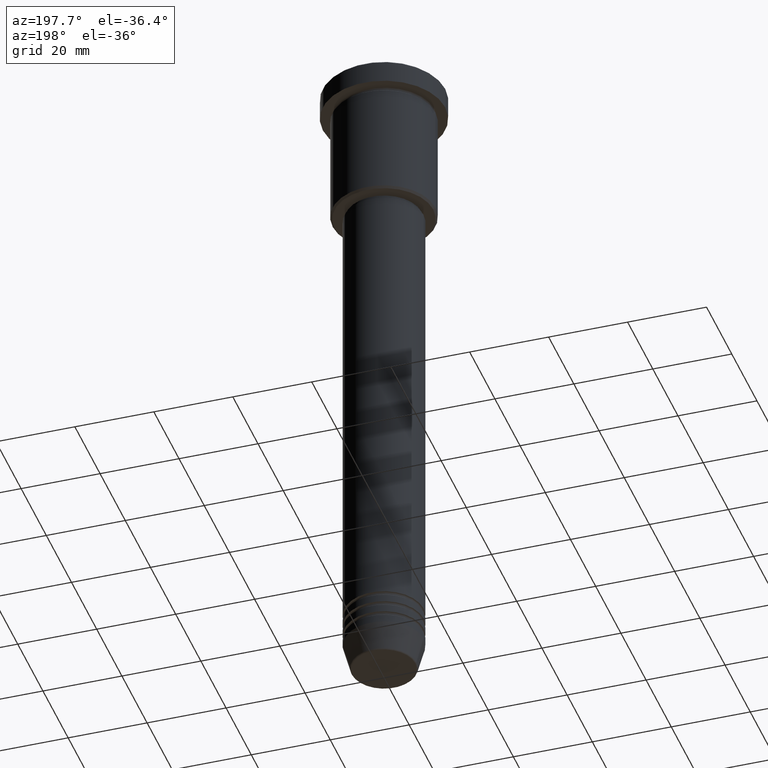
[diagram: clean part render]
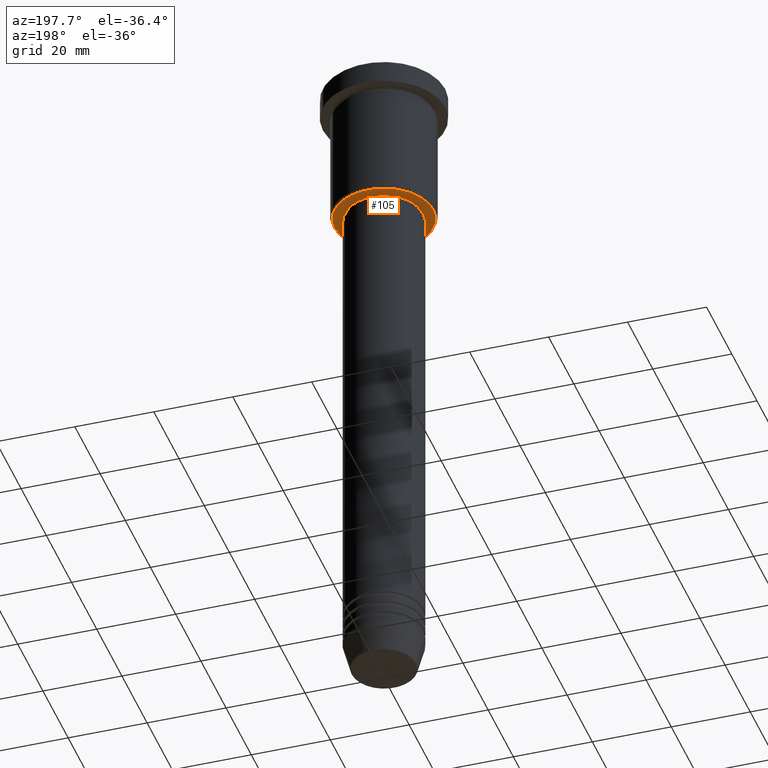
[diagram: same view with one face highlighted and labeled with its STEP entity id]
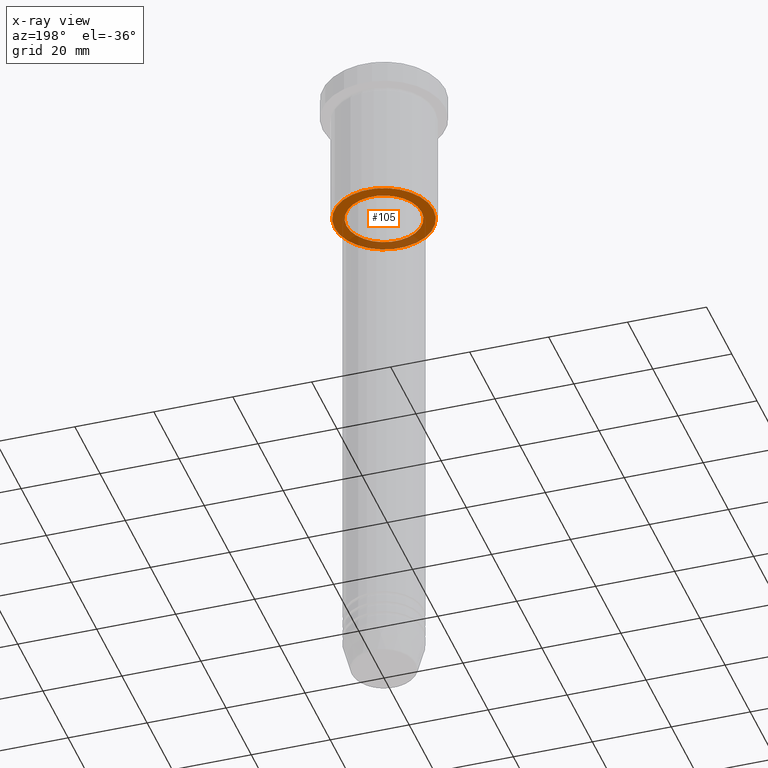
[diagram: x-ray of the same camera — body ghosted, the highlighted face saturated]
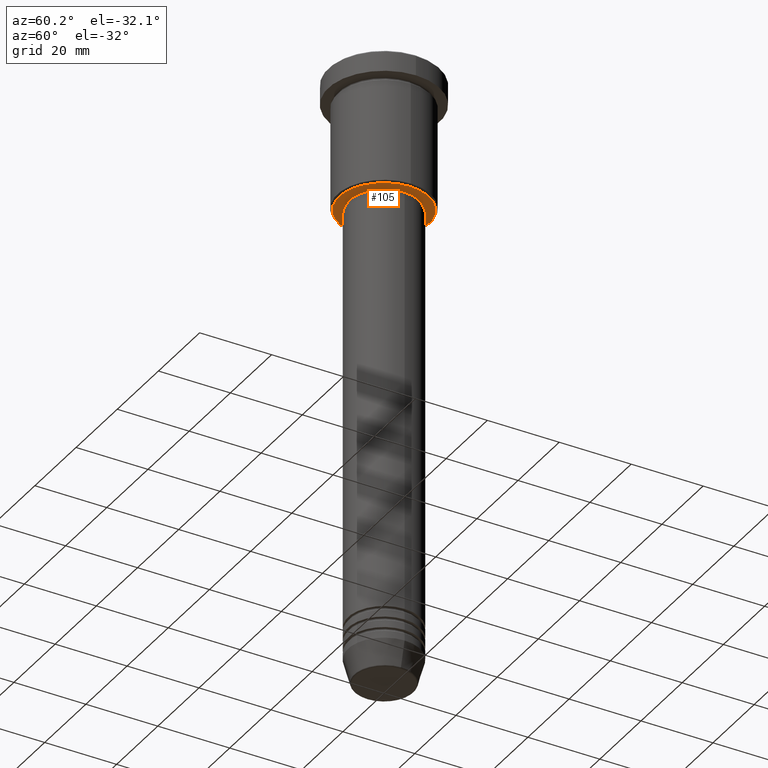
[diagram: same view with one face highlighted and labeled with its STEP entity id]
A machine part, auxiliary view. The second image highlights one B-rep face of the part: STEP entity #105.
The next image is the same camera in x-ray: the body ghosted, the highlighted face saturated — about 25% of this face is hidden behind the body in this view.
A second angle (auxiliary view) of the same face is appended — the face is thin or edge-on in the first view.
In plain terms, the highlighted planar face has unit normal (0, 0, -1).
Its self-contained STEP definition (entity closure, byte-faithful):
#34 = EDGE_LOOP ( 'NONE', ( #687, #958 ) ) ;
#48 = CIRCLE ( 'NONE', #617, 9.500000000000000000 ) ;
#97 = DIRECTION ( 'NONE',  ( 0.000000000000000000, 0.000000000000000000, -1.000000000000000000 ) ) ;
#105 = ADVANCED_FACE ( 'NONE', ( #367, #928 ), #767, .T. ) ;
#125 = CIRCLE ( 'NONE', #427, 12.49999999999996980 ) ;
#129 = DIRECTION ( 'NONE',  ( -1.000000000000000000, 0.000000000000000000, -0.000000000000000000 ) ) ;
#140 = EDGE_CURVE ( 'NONE', #852, #201, #48, .T. ) ;
#168 = AXIS2_PLACEMENT_3D ( 'NONE', #547, #828, #451 ) ;
#190 = DIRECTION ( 'NONE',  ( -1.000000000000000000, 0.000000000000000000, 0.000000000000000000 ) ) ;
#201 = VERTEX_POINT ( 'NONE', #218 ) ;
#218 = CARTESIAN_POINT ( 'NONE',  ( 9.500000000000000000, 0.000000000000000000, -35.99999999999999289 ) ) ;
#250 = EDGE_CURVE ( 'NONE', #952, #471, #483, .T. ) ;
#301 = DIRECTION ( 'NONE',  ( 0.000000000000000000, 0.000000000000000000, -1.000000000000000000 ) ) ;
#367 = FACE_OUTER_BOUND ( 'NONE', #34, .T. ) ;
#369 = CARTESIAN_POINT ( 'NONE',  ( -9.500000000000000000, 1.163414459189985485E-15, -35.99999999999999289 ) ) ;
#403 = EDGE_LOOP ( 'NONE', ( #753, #1057 ) ) ;
#425 = CIRCLE ( 'NONE', #656, 9.500000000000000000 ) ;
#427 = AXIS2_PLACEMENT_3D ( 'NONE', #646, #97, #190 ) ;
#451 = DIRECTION ( 'NONE',  ( -1.000000000000000000, 0.000000000000000000, 0.000000000000000000 ) ) ;
#471 = VERTEX_POINT ( 'NONE', #545 ) ;
#483 = CIRCLE ( 'NONE', #168, 12.49999999999996980 ) ;
#506 = DIRECTION ( 'NONE',  ( -0.000000000000000000, -0.000000000000000000, 1.000000000000000000 ) ) ;
#545 = CARTESIAN_POINT ( 'NONE',  ( -12.49999999999996980, 1.561424668912873336E-15, -35.99999999999999289 ) ) ;
#547 = CARTESIAN_POINT ( 'NONE',  ( 0.000000000000000000, 0.000000000000000000, -35.99999999999999289 ) ) ;
#573 = EDGE_CURVE ( 'NONE', #201, #852, #425, .T. ) ;
#604 = CARTESIAN_POINT ( 'NONE',  ( 0.000000000000000000, 0.000000000000000000, -35.99999999999999289 ) ) ;
#617 = AXIS2_PLACEMENT_3D ( 'NONE', #644, #655, #1001 ) ;
#638 = DIRECTION ( 'NONE',  ( 1.000000000000000000, 0.000000000000000000, 0.000000000000000000 ) ) ;
#644 = CARTESIAN_POINT ( 'NONE',  ( 0.000000000000000000, 0.000000000000000000, -35.99999999999999289 ) ) ;
#646 = CARTESIAN_POINT ( 'NONE',  ( 0.000000000000000000, 0.000000000000000000, -35.99999999999999289 ) ) ;
#655 = DIRECTION ( 'NONE',  ( -0.000000000000000000, -0.000000000000000000, 1.000000000000000000 ) ) ;
#656 = AXIS2_PLACEMENT_3D ( 'NONE', #604, #506, #638 ) ;
#687 = ORIENTED_EDGE ( 'NONE', *, *, #250, .T. ) ;
#753 = ORIENTED_EDGE ( 'NONE', *, *, #573, .T. ) ;
#767 = PLANE ( 'NONE',  #1119 ) ;
#816 = EDGE_CURVE ( 'NONE', #471, #952, #125, .T. ) ;
#828 = DIRECTION ( 'NONE',  ( 0.000000000000000000, 0.000000000000000000, -1.000000000000000000 ) ) ;
#852 = VERTEX_POINT ( 'NONE', #369 ) ;
#928 = FACE_BOUND ( 'NONE', #403, .T. ) ;
#952 = VERTEX_POINT ( 'NONE', #1096 ) ;
#958 = ORIENTED_EDGE ( 'NONE', *, *, #816, .T. ) ;
#1001 = DIRECTION ( 'NONE',  ( 1.000000000000000000, 0.000000000000000000, 0.000000000000000000 ) ) ;
#1057 = ORIENTED_EDGE ( 'NONE', *, *, #140, .T. ) ;
#1096 = CARTESIAN_POINT ( 'NONE',  ( 12.49999999999996980, 0.000000000000000000, -35.99999999999999289 ) ) ;
#1119 = AXIS2_PLACEMENT_3D ( 'NONE', #1127, #301, #129 ) ;
#1127 = CARTESIAN_POINT ( 'NONE',  ( 0.000000000000000000, 13.00000000000000000, -35.99999999999999289 ) ) ;